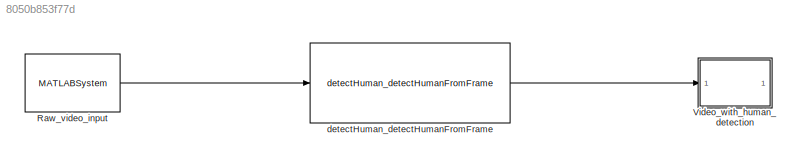
MODEL slx_8050b853f77d
KIND model
CONFIG AbsTol = auto
CONFIG EnableMultiTasking = off
CONFIG FixedStep = 0.2
CONFIG InitFcn = coeffStds = [0.002995595096857,0.076600147330248,0.631288082601997,0.002600128777275,0.073641936476251,0.984567040148445];\ncoeffMeans = [-1.939450143265110e-04,1.557727430093527e-04,1.473991581706893,-1.909623131136531e-04,0.004474616468621,-1.378729416735388];\nIsize = single(zeros(227,227));
CONFIG MaxStep = auto
CONFIG MinStep = auto
CONFIG RelTol = 1e-3
CONFIG SampleTimeConstraint = Unconstrained
CONFIG SolverName = FixedStepAuto
CONFIG StartTime = 0.0
CONFIG StopTime = 20
BLOCK [MATLABSystem] Raw_video_input
  MaskDisplay = disp('videoReader');\nport_label('output',1,'y');
  MaskType = videoReader
  SimulateUsing = Interpreted execution
  System = videoReader
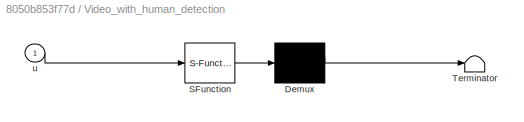
BLOCK [SubSystem] Video_with_human_detection
  ErrorFcn = Stateflow.Translate.translate
  PermitHierarchicalResolution = ExplicitOnly
  SFBlockType = MATLAB Function
  TreatAsAtomicUnit = on
BLOCK [Demux] Video_with_human_detection/ Demux 
  Outputs = 1
BLOCK [S-Function] Video_with_human_detection/ SFunction 
  EnableBusSupport = on
  FunctionName = sf_sfun
  PortCounts = [1 1]
  SFcnIsStateOwnerBlock = off
  SFunctionDeploymentMode = off
  Tag = Stateflow S-Function 3
BLOCK [Terminator] Video_with_human_detection/ Terminator 
BLOCK [Inport] Video_with_human_detection/u
BLOCK [Reference] detectHuman_detectHumanFromFrame  REF=HumanDetection/detectHuman_detectHumanFromFrame
  SourceBlock = HumanDetection/detectHuman_detectHumanFromFrame
  SourceType = detectHuman_detectHumanFromFrame
LINE Raw_video_input:1 -> detectHuman_detectHumanFromFrame:1
LINE detectHuman_detectHumanFromFrame:1 -> Video_with_human_detection:1
CHART Video_with_human_detection states=1 transitions=1
  STATE_LABEL 'eML_blk_kernel()'
  STATE_LABEL "SCRIPT:\nfunction fcn(u)\n    coder.extrinsic('imagesc');\n    imagesc(u);\n    drawnow\n"
CHART  states=0 transitions=0
